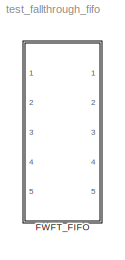
MODEL test_fallthrough_fifo
KIND model
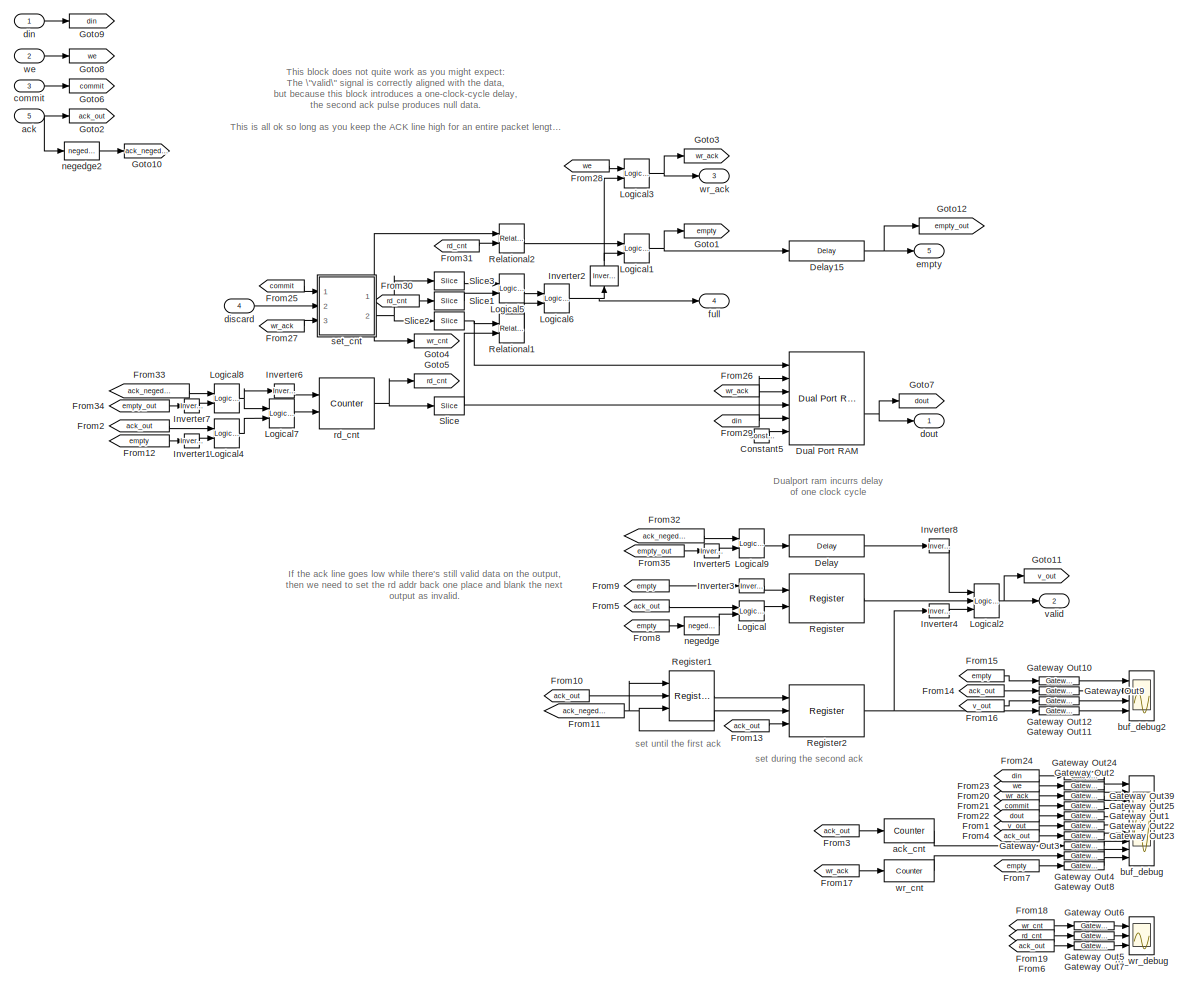
[diagram: FWFT_FIFO - part 1/1, most of the canvas]
BLOCK [SubSystem] FWFT_FIFO
  AttributesFormatString = Depth: 1024
  MaskDescription = A rollback fifo behaves as a normal fifo, except that data which are written in have to be \"committed\" before they become available for readout.  Moreover, any data which are written in and have not been committed can be \"discarded\", and will never be made available for readout.
  MaskEnableString = on
  MaskIconFrame = on
  MaskIconOpaque = on
  MaskIconRotate = none
  MaskIconUnits = autoscale
  MaskInitialization = fmtstr = sprintf('Depth: %d', 2^depth_bits);\nset_param(gcb, 'AttributesFormatString', fmtstr);
  MaskPromptString = Fifo Depth (2^?):
  MaskStyleString = edit
  MaskToolTipString = on
  MaskTunableValueString = on
  MaskValueString = 10
  MaskVariables = depth_bits=@1;
  MaskVisibilityString = on
  MinAlgLoopOccurrences = off
  Ports = [5, 5]
  RTWSystemCode = Auto
  TreatAsAtomicUnit = off
BLOCK [Reference] FWFT_FIFO/Constant5  REF=xbsIndex_r3/Constant
  Ports = [0, 1]
  SourceBlock = xbsIndex_r3/Constant
  SourceType = Xilinx Constant Block
  arith_type = Boolean
  bin_pt = 0
  carry = CIN
  const = 0
  dbl_ovrd = off
  equ = P=C
  explicit_period = on
  inp1 = P
  inp2 = PCIN>>17
  iostate = 0
  n_bits = 1
  opr = +
  opselect = C
  period = 1
BLOCK [Reference] FWFT_FIFO/Delay  REF=xbsIndex_r3/Delay
  Ports = [1, 1]
  SourceBlock = xbsIndex_r3/Delay
  SourceType = Xilinx Delay Block
  accept_only_valid = off
  dbl_ovrd = off
  en = off
  explicit_period = off
  init_zero = on
  latency = 1
  period = 1
  reg_retiming = off
  show_param = off
  xl_area = [0, 0, 0, 0, 0, 0, 0]
  xl_use_area = off
BLOCK [Reference] FWFT_FIFO/Delay15  REF=xbsIndex_r3/Delay
  Ports = [1, 1]
  SourceBlock = xbsIndex_r3/Delay
  SourceType = Xilinx Delay Block
  accept_only_valid = off
  dbl_ovrd = off
  en = off
  explicit_period = off
  init_zero = on
  latency = 1
  period = 1
  reg_retiming = on
  show_param = off
  xl_area = [0, 0, 0, 0, 0, 0, 0]
  xl_use_area = off
BLOCK [Reference] FWFT_FIFO/Dual Port RAM  REF=xbsIndex_r3/Dual Port RAM
  Ports = [6, 2]
  SourceBlock = xbsIndex_r3/Dual Port RAM
  SourceType = Xilinx Dual Port Random Access Memory
  dbl_ovrd = off
  depth = 2^depth_bits
  distributed_mem = off
  explicit_period = off
  gen_core = off
  initVector = 0
  init_a = 0
  init_b = 0
  init_zero = on
  latency = 1
  mem_collision = off
  period = 1
  rst_a = off
  rst_b = off
  show_param = off
  use_rpm = off
  write_mode_A = Read Before Write
  write_mode_B = Read Before Write
  xl_area = [0, 0, 0, 0, 0, 0, 0]
  xl_use_area = off
BLOCK [From] FWFT_FIFO/From1
  CloseFcn = tagdialog Close
  GotoTag = v_out
BLOCK [From] FWFT_FIFO/From10
  CloseFcn = tagdialog Close
  GotoTag = ack_out
BLOCK [From] FWFT_FIFO/From11
  CloseFcn = tagdialog Close
  GotoTag = ack_negedge
BLOCK [From] FWFT_FIFO/From12
  CloseFcn = tagdialog Close
  GotoTag = empty
BLOCK [From] FWFT_FIFO/From13
  CloseFcn = tagdialog Close
  GotoTag = ack_out
BLOCK [From] FWFT_FIFO/From14
  CloseFcn = tagdialog Close
  GotoTag = ack_out
BLOCK [From] FWFT_FIFO/From15
  CloseFcn = tagdialog Close
  GotoTag = empty
BLOCK [From] FWFT_FIFO/From16
  CloseFcn = tagdialog Close
  GotoTag = v_out
BLOCK [From] FWFT_FIFO/From17
  CloseFcn = tagdialog Close
  GotoTag = wr_ack
BLOCK [From] FWFT_FIFO/From18
  CloseFcn = tagdialog Close
  GotoTag = wr_cnt
BLOCK [From] FWFT_FIFO/From19
  CloseFcn = tagdialog Close
  GotoTag = rd_cnt
BLOCK [From] FWFT_FIFO/From2
  CloseFcn = tagdialog Close
  GotoTag = ack_out
BLOCK [From] FWFT_FIFO/From20
  CloseFcn = tagdialog Close
  GotoTag = wr_ack
BLOCK [From] FWFT_FIFO/From21
  CloseFcn = tagdialog Close
  GotoTag = commit
BLOCK [From] FWFT_FIFO/From22
  CloseFcn = tagdialog Close
  GotoTag = dout
BLOCK [From] FWFT_FIFO/From23
  CloseFcn = tagdialog Close
  GotoTag = we
BLOCK [From] FWFT_FIFO/From24
  CloseFcn = tagdialog Close
  GotoTag = din
BLOCK [From] FWFT_FIFO/From25
  CloseFcn = tagdialog Close
  GotoTag = commit
BLOCK [From] FWFT_FIFO/From26
  CloseFcn = tagdialog Close
  GotoTag = wr_ack
BLOCK [From] FWFT_FIFO/From27
  CloseFcn = tagdialog Close
  GotoTag = wr_ack
BLOCK [From] FWFT_FIFO/From28
  CloseFcn = tagdialog Close
  GotoTag = we
BLOCK [From] FWFT_FIFO/From29
  CloseFcn = tagdialog Close
  GotoTag = din
BLOCK [From] FWFT_FIFO/From3
  CloseFcn = tagdialog Close
  GotoTag = ack_out
BLOCK [From] FWFT_FIFO/From30
  CloseFcn = tagdialog Close
  GotoTag = rd_cnt
BLOCK [From] FWFT_FIFO/From31
  CloseFcn = tagdialog Close
  GotoTag = rd_cnt
BLOCK [From] FWFT_FIFO/From32
  CloseFcn = tagdialog Close
  GotoTag = ack_negedge
BLOCK [From] FWFT_FIFO/From33
  CloseFcn = tagdialog Close
  GotoTag = ack_negedge
BLOCK [From] FWFT_FIFO/From34
  CloseFcn = tagdialog Close
  GotoTag = empty_out
BLOCK [From] FWFT_FIFO/From35
  CloseFcn = tagdialog Close
  GotoTag = empty_out
BLOCK [From] FWFT_FIFO/From4
  CloseFcn = tagdialog Close
  GotoTag = ack_out
BLOCK [From] FWFT_FIFO/From5
  CloseFcn = tagdialog Close
  GotoTag = ack_out
BLOCK [From] FWFT_FIFO/From6
  CloseFcn = tagdialog Close
  GotoTag = ack_out
BLOCK [From] FWFT_FIFO/From7
  CloseFcn = tagdialog Close
  GotoTag = empty
BLOCK [From] FWFT_FIFO/From8
  CloseFcn = tagdialog Close
  GotoTag = empty
BLOCK [From] FWFT_FIFO/From9
  CloseFcn = tagdialog Close
  GotoTag = empty
BLOCK [Reference] FWFT_FIFO/Gateway Out1  REF=xbsIndex_r3/Gateway Out
  LOCs = {}
  Ports = [1, 1]
  SourceBlock = xbsIndex_r3/Gateway Out
  SourceType = Xilinx Gateway Out
  arith_type = Boolean
  bin_pt = 6
  hdl_port = on
  locs_specified = off
  nbits = 8
  needs_fixed_name = off
  output_type = Double
  overflow = Wrap
  quantization = Truncate
  show_param = off
  timing_constraint = None
  xl_area = [0, 0, 0, 0, 0, 0, 0]
  xl_use_area = off
BLOCK [Reference] FWFT_FIFO/Gateway Out10  REF=xbsIndex_r3/Gateway Out
  LOCs = {}
  Ports = [1, 1]
  SourceBlock = xbsIndex_r3/Gateway Out
  SourceType = Xilinx Gateway Out
  arith_type = Boolean
  bin_pt = 6
  hdl_port = on
  locs_specified = off
  nbits = 8
  needs_fixed_name = off
  output_type = Double
  overflow = Wrap
  quantization = Truncate
  show_param = off
  timing_constraint = None
  xl_area = [0, 0, 0, 0, 0, 0, 0]
  xl_use_area = off
BLOCK [Reference] FWFT_FIFO/Gateway Out11  REF=xbsIndex_r3/Gateway Out
  LOCs = {}
  Ports = [1, 1]
  SourceBlock = xbsIndex_r3/Gateway Out
  SourceType = Xilinx Gateway Out
  arith_type = Boolean
  bin_pt = 6
  hdl_port = on
  locs_specified = off
  nbits = 8
  needs_fixed_name = off
  output_type = Double
  overflow = Wrap
  quantization = Truncate
  show_param = off
  timing_constraint = None
  xl_area = [0, 0, 0, 0, 0, 0, 0]
  xl_use_area = off
BLOCK [Reference] FWFT_FIFO/Gateway Out12  REF=xbsIndex_r3/Gateway Out
  LOCs = {}
  Ports = [1, 1]
  SourceBlock = xbsIndex_r3/Gateway Out
  SourceType = Xilinx Gateway Out
  arith_type = Boolean
  bin_pt = 6
  hdl_port = on
  locs_specified = off
  nbits = 8
  needs_fixed_name = off
  output_type = Double
  overflow = Wrap
  quantization = Truncate
  show_param = off
  timing_constraint = None
  xl_area = [0, 0, 0, 0, 0, 0, 0]
  xl_use_area = off
BLOCK [Reference] FWFT_FIFO/Gateway Out2  REF=xbsIndex_r3/Gateway Out
  LOCs = {}
  Ports = [1, 1]
  SourceBlock = xbsIndex_r3/Gateway Out
  SourceType = Xilinx Gateway Out
  arith_type = Boolean
  bin_pt = 6
  hdl_port = on
  locs_specified = off
  nbits = 8
  needs_fixed_name = off
  output_type = Double
  overflow = Wrap
  quantization = Truncate
  show_param = off
  timing_constraint = None
  xl_area = [0, 0, 0, 0, 0, 0, 0]
  xl_use_area = off
BLOCK [Reference] FWFT_FIFO/Gateway Out22  REF=xbsIndex_r3/Gateway Out
  LOCs = {}
  Ports = [1, 1]
  SourceBlock = xbsIndex_r3/Gateway Out
  SourceType = Xilinx Gateway Out
  arith_type = Boolean
  bin_pt = 6
  hdl_port = on
  locs_specified = off
  nbits = 8
  needs_fixed_name = off
  output_type = Double
  overflow = Wrap
  quantization = Truncate
  show_param = off
  timing_constraint = None
  xl_area = [0, 0, 0, 0, 0, 0, 0]
  xl_use_area = off
BLOCK [Reference] FWFT_FIFO/Gateway Out23  REF=xbsIndex_r3/Gateway Out
  LOCs = {}
  Ports = [1, 1]
  SourceBlock = xbsIndex_r3/Gateway Out
  SourceType = Xilinx Gateway Out
  arith_type = Boolean
  bin_pt = 6
  hdl_port = on
  locs_specified = off
  nbits = 8
  needs_fixed_name = off
  output_type = Double
  overflow = Wrap
  quantization = Truncate
  show_param = off
  timing_constraint = None
  xl_area = [0, 0, 0, 0, 0, 0, 0]
  xl_use_area = off
BLOCK [Reference] FWFT_FIFO/Gateway Out24  REF=xbsIndex_r3/Gateway Out
  LOCs = {}
  Ports = [1, 1]
  SourceBlock = xbsIndex_r3/Gateway Out
  SourceType = Xilinx Gateway Out
  arith_type = Boolean
  bin_pt = 6
  hdl_port = on
  locs_specified = off
  nbits = 8
  needs_fixed_name = off
  output_type = Double
  overflow = Wrap
  quantization = Truncate
  show_param = off
  timing_constraint = None
  xl_area = [0, 0, 0, 0, 0, 0, 0]
  xl_use_area = off
BLOCK [Reference] FWFT_FIFO/Gateway Out25  REF=xbsIndex_r3/Gateway Out
  LOCs = {}
  Ports = [1, 1]
  SourceBlock = xbsIndex_r3/Gateway Out
  SourceType = Xilinx Gateway Out
  arith_type = Boolean
  bin_pt = 6
  hdl_port = on
  locs_specified = off
  nbits = 8
  needs_fixed_name = off
  output_type = Double
  overflow = Wrap
  quantization = Truncate
  show_param = off
  timing_constraint = None
  xl_area = [0, 0, 0, 0, 0, 0, 0]
  xl_use_area = off
BLOCK [Reference] FWFT_FIFO/Gateway Out3  REF=xbsIndex_r3/Gateway Out
  LOCs = {}
  Ports = [1, 1]
  SourceBlock = xbsIndex_r3/Gateway Out
  SourceType = Xilinx Gateway Out
  arith_type = Boolean
  bin_pt = 6
  hdl_port = on
  locs_specified = off
  nbits = 8
  needs_fixed_name = off
  output_type = Double
  overflow = Wrap
  quantization = Truncate
  show_param = off
  timing_constraint = None
  xl_area = [0, 0, 0, 0, 0, 0, 0]
  xl_use_area = off
BLOCK [Reference] FWFT_FIFO/Gateway Out39  REF=xbsIndex_r3/Gateway Out
  LOCs = {}
  Ports = [1, 1]
  SourceBlock = xbsIndex_r3/Gateway Out
  SourceType = Xilinx Gateway Out
  arith_type = Boolean
  bin_pt = 6
  hdl_port = on
  locs_specified = off
  nbits = 8
  needs_fixed_name = off
  output_type = Double
  overflow = Wrap
  quantization = Truncate
  show_param = off
  timing_constraint = None
  xl_area = [0, 0, 0, 0, 0, 0, 0]
  xl_use_area = off
BLOCK [Reference] FWFT_FIFO/Gateway Out4  REF=xbsIndex_r3/Gateway Out
  LOCs = {}
  Ports = [1, 1]
  SourceBlock = xbsIndex_r3/Gateway Out
  SourceType = Xilinx Gateway Out
  arith_type = Boolean
  bin_pt = 6
  hdl_port = on
  locs_specified = off
  nbits = 8
  needs_fixed_name = off
  output_type = Double
  overflow = Wrap
  quantization = Truncate
  show_param = off
  timing_constraint = None
  xl_area = [0, 0, 0, 0, 0, 0, 0]
  xl_use_area = off
BLOCK [Reference] FWFT_FIFO/Gateway Out5  REF=xbsIndex_r3/Gateway Out
  LOCs = {}
  Ports = [1, 1]
  SourceBlock = xbsIndex_r3/Gateway Out
  SourceType = Xilinx Gateway Out
  arith_type = Boolean
  bin_pt = 6
  hdl_port = on
  locs_specified = off
  nbits = 8
  needs_fixed_name = off
  output_type = Double
  overflow = Wrap
  quantization = Truncate
  show_param = off
  timing_constraint = None
  xl_area = [0, 0, 0, 0, 0, 0, 0]
  xl_use_area = off
BLOCK [Reference] FWFT_FIFO/Gateway Out6  REF=xbsIndex_r3/Gateway Out
  LOCs = {}
  Ports = [1, 1]
  SourceBlock = xbsIndex_r3/Gateway Out
  SourceType = Xilinx Gateway Out
  arith_type = Boolean
  bin_pt = 6
  hdl_port = on
  locs_specified = off
  nbits = 8
  needs_fixed_name = off
  output_type = Double
  overflow = Wrap
  quantization = Truncate
  show_param = off
  timing_constraint = None
  xl_area = [0, 0, 0, 0, 0, 0, 0]
  xl_use_area = off
BLOCK [Reference] FWFT_FIFO/Gateway Out7  REF=xbsIndex_r3/Gateway Out
  LOCs = {}
  Ports = [1, 1]
  SourceBlock = xbsIndex_r3/Gateway Out
  SourceType = Xilinx Gateway Out
  arith_type = Boolean
  bin_pt = 6
  hdl_port = on
  locs_specified = off
  nbits = 8
  needs_fixed_name = off
  output_type = Double
  overflow = Wrap
  quantization = Truncate
  show_param = off
  timing_constraint = None
  xl_area = [0, 0, 0, 0, 0, 0, 0]
  xl_use_area = off
BLOCK [Reference] FWFT_FIFO/Gateway Out8  REF=xbsIndex_r3/Gateway Out
  LOCs = {}
  Ports = [1, 1]
  SourceBlock = xbsIndex_r3/Gateway Out
  SourceType = Xilinx Gateway Out
  arith_type = Boolean
  bin_pt = 6
  hdl_port = on
  locs_specified = off
  nbits = 8
  needs_fixed_name = off
  output_type = Double
  overflow = Wrap
  quantization = Truncate
  show_param = off
  timing_constraint = None
  xl_area = [0, 0, 0, 0, 0, 0, 0]
  xl_use_area = off
BLOCK [Reference] FWFT_FIFO/Gateway Out9  REF=xbsIndex_r3/Gateway Out
  LOCs = {}
  Ports = [1, 1]
  SourceBlock = xbsIndex_r3/Gateway Out
  SourceType = Xilinx Gateway Out
  arith_type = Boolean
  bin_pt = 6
  hdl_port = on
  locs_specified = off
  nbits = 8
  needs_fixed_name = off
  output_type = Double
  overflow = Wrap
  quantization = Truncate
  show_param = off
  timing_constraint = None
  xl_area = [0, 0, 0, 0, 0, 0, 0]
  xl_use_area = off
BLOCK [Goto] FWFT_FIFO/Goto1
  GotoTag = empty
  TagVisibility = local
BLOCK [Goto] FWFT_FIFO/Goto10
  GotoTag = ack_negedge
  TagVisibility = local
BLOCK [Goto] FWFT_FIFO/Goto11
  GotoTag = v_out
  TagVisibility = local
BLOCK [Goto] FWFT_FIFO/Goto12
  GotoTag = empty_out
  TagVisibility = local
BLOCK [Goto] FWFT_FIFO/Goto2
  GotoTag = ack_out
  TagVisibility = local
BLOCK [Goto] FWFT_FIFO/Goto3
  GotoTag = wr_ack
  TagVisibility = local
BLOCK [Goto] FWFT_FIFO/Goto4
  GotoTag = wr_cnt
  TagVisibility = local
BLOCK [Goto] FWFT_FIFO/Goto5
  GotoTag = rd_cnt
  TagVisibility = local
BLOCK [Goto] FWFT_FIFO/Goto6
  GotoTag = commit
  TagVisibility = local
BLOCK [Goto] FWFT_FIFO/Goto7
  GotoTag = dout
  TagVisibility = local
BLOCK [Goto] FWFT_FIFO/Goto8
  GotoTag = we
  TagVisibility = local
BLOCK [Goto] FWFT_FIFO/Goto9
  GotoTag = din
  TagVisibility = local
BLOCK [Reference] FWFT_FIFO/Inverter1  REF=xbsIndex_r3/Inverter
  Ports = [1, 1]
  SourceBlock = xbsIndex_r3/Inverter
  SourceType = Xilinx Inverter
  dbl_ovrd = off
  en = off
  explicit_period = off
  latency = 0
  period = 1
  show_param = off
  xl_area = [0, 0, 0, 0, 0, 0, 0]
  xl_use_area = off
BLOCK [Reference] FWFT_FIFO/Inverter2  REF=xbsIndex_r3/Inverter
  Ports = [1, 1]
  SourceBlock = xbsIndex_r3/Inverter
  SourceType = Xilinx Inverter
  dbl_ovrd = off
  en = off
  explicit_period = off
  latency = 0
  period = 1
  show_param = off
  xl_area = [0, 0, 0, 0, 0, 0, 0]
  xl_use_area = off
BLOCK [Reference] FWFT_FIFO/Inverter3  REF=xbsIndex_r3/Inverter
  Ports = [1, 1]
  SourceBlock = xbsIndex_r3/Inverter
  SourceType = Xilinx Inverter
  dbl_ovrd = off
  en = off
  explicit_period = off
  latency = 0
  period = 1
  show_param = off
  xl_area = [0, 0, 0, 0, 0, 0, 0]
  xl_use_area = off
BLOCK [Reference] FWFT_FIFO/Inverter4  REF=xbsIndex_r3/Inverter
  Ports = [1, 1]
  SourceBlock = xbsIndex_r3/Inverter
  SourceType = Xilinx Inverter
  dbl_ovrd = off
  en = off
  explicit_period = off
  latency = 0
  period = 1
  show_param = off
  xl_area = [0, 0, 0, 0, 0, 0, 0]
  xl_use_area = off
BLOCK [Reference] FWFT_FIFO/Inverter5  REF=xbsIndex_r3/Inverter
  Ports = [1, 1]
  SourceBlock = xbsIndex_r3/Inverter
  SourceType = Xilinx Inverter
  dbl_ovrd = off
  en = off
  explicit_period = off
  latency = 0
  period = 1
  show_param = off
  xl_area = [0, 0, 0, 0, 0, 0, 0]
  xl_use_area = off
BLOCK [Reference] FWFT_FIFO/Inverter6  REF=xbsIndex_r3/Inverter
  Ports = [1, 1]
  SourceBlock = xbsIndex_r3/Inverter
  SourceType = Xilinx Inverter
  dbl_ovrd = off
  en = off
  explicit_period = off
  latency = 0
  period = 1
  show_param = off
  xl_area = [0, 0, 0, 0, 0, 0, 0]
  xl_use_area = off
BLOCK [Reference] FWFT_FIFO/Inverter7  REF=xbsIndex_r3/Inverter
  Ports = [1, 1]
  SourceBlock = xbsIndex_r3/Inverter
  SourceType = Xilinx Inverter
  dbl_ovrd = off
  en = off
  explicit_period = off
  latency = 0
  period = 1
  show_param = off
  xl_area = [0, 0, 0, 0, 0, 0, 0]
  xl_use_area = off
BLOCK [Reference] FWFT_FIFO/Inverter8  REF=xbsIndex_r3/Inverter
  Ports = [1, 1]
  SourceBlock = xbsIndex_r3/Inverter
  SourceType = Xilinx Inverter
  dbl_ovrd = off
  en = off
  explicit_period = off
  latency = 0
  period = 1
  show_param = off
  xl_area = [0, 0, 0, 0, 0, 0, 0]
  xl_use_area = off
BLOCK [Reference] FWFT_FIFO/Logical  REF=xbsIndex_r3/Logical
  Ports = [2, 1]
  SourceBlock = xbsIndex_r3/Logical
  SourceType = Xilinx Logical Block
  align_bp = on
  arith_type = Unsigned
  bin_pt = 2
  dbl_ovrd = off
  en = off
  explicit_period = off
  inputs = 2
  latency = 0
  logical_function = OR
  n_bits = 8
  period = 1
  precision = Full
  show_param = off
  xl_area = [0, 0, 0, 0, 0, 0, 0]
  xl_use_area = off
BLOCK [Reference] FWFT_FIFO/Logical1  REF=xbsIndex_r3/Logical
  Ports = [2, 1]
  SourceBlock = xbsIndex_r3/Logical
  SourceType = Xilinx Logical Block
  align_bp = on
  arith_type = Unsigned
  bin_pt = 2
  dbl_ovrd = off
  en = off
  explicit_period = on
  inputs = 2
  latency = 0
  logical_function = AND
  n_bits = 8
  period = 1
  precision = Full
  show_param = off
  xl_area = [0, 0, 0, 0, 0, 0, 0]
  xl_use_area = off
BLOCK [Reference] FWFT_FIFO/Logical2  REF=xbsIndex_r3/Logical
  Ports = [3, 1]
  SourceBlock = xbsIndex_r3/Logical
  SourceType = Xilinx Logical Block
  align_bp = on
  arith_type = Unsigned
  bin_pt = 2
  dbl_ovrd = off
  en = off
  explicit_period = on
  inputs = 3
  latency = 0
  logical_function = AND
  n_bits = 8
  period = 1
  precision = Full
  show_param = off
  xl_area = [0, 0, 0, 0, 0, 0, 0]
  xl_use_area = off
BLOCK [Reference] FWFT_FIFO/Logical3  REF=xbsIndex_r3/Logical
  Ports = [2, 1]
  SourceBlock = xbsIndex_r3/Logical
  SourceType = Xilinx Logical Block
  align_bp = on
  arith_type = Unsigned
  bin_pt = 2
  dbl_ovrd = off
  en = off
  explicit_period = off
  inputs = 2
  latency = 0
  logical_function = AND
  n_bits = 8
  period = 1
  precision = Full
  show_param = off
  xl_area = [0, 0, 0, 0, 0, 0, 0]
  xl_use_area = off
BLOCK [Reference] FWFT_FIFO/Logical4  REF=xbsIndex_r3/Logical
  Ports = [2, 1]
  SourceBlock = xbsIndex_r3/Logical
  SourceType = Xilinx Logical Block
  align_bp = on
  arith_type = Unsigned
  bin_pt = 2
  dbl_ovrd = off
  en = off
  explicit_period = off
  inputs = 2
  latency = 0
  logical_function = AND
  n_bits = 8
  period = 1
  precision = Full
  show_param = off
  xl_area = [0, 0, 0, 0, 0, 0, 0]
  xl_use_area = off
BLOCK [Reference] FWFT_FIFO/Logical5  REF=xbsIndex_r3/Logical
  Ports = [2, 1]
  SourceBlock = xbsIndex_r3/Logical
  SourceType = Xilinx Logical Block
  align_bp = on
  arith_type = Unsigned
  bin_pt = 2
  dbl_ovrd = off
  en = off
  explicit_period = off
  inputs = 2
  latency = 0
  logical_function = XOR
  n_bits = 8
  period = 1
  precision = Full
  show_param = off
  xl_area = [0, 0, 0, 0, 0, 0, 0]
  xl_use_area = off
BLOCK [Reference] FWFT_FIFO/Logical6  REF=xbsIndex_r3/Logical
  Ports = [2, 1]
  SourceBlock = xbsIndex_r3/Logical
  SourceType = Xilinx Logical Block
  align_bp = on
  arith_type = Unsigned
  bin_pt = 2
  dbl_ovrd = off
  en = off
  explicit_period = off
  inputs = 2
  latency = 0
  logical_function = AND
  n_bits = 8
  period = 1
  precision = Full
  show_param = off
  xl_area = [0, 0, 0, 0, 0, 0, 0]
  xl_use_area = off
BLOCK [Reference] FWFT_FIFO/Logical7  REF=xbsIndex_r3/Logical
  Ports = [2, 1]
  SourceBlock = xbsIndex_r3/Logical
  SourceType = Xilinx Logical Block
  align_bp = on
  arith_type = Unsigned
  bin_pt = 2
  dbl_ovrd = off
  en = off
  explicit_period = off
  inputs = 2
  latency = 0
  logical_function = OR
  n_bits = 8
  period = 1
  precision = Full
  show_param = off
  xl_area = [0, 0, 0, 0, 0, 0, 0]
  xl_use_area = off
BLOCK [Reference] FWFT_FIFO/Logical8  REF=xbsIndex_r3/Logical
  Ports = [2, 1]
  SourceBlock = xbsIndex_r3/Logical
  SourceType = Xilinx Logical Block
  align_bp = on
  arith_type = Unsigned
  bin_pt = 2
  dbl_ovrd = off
  en = off
  explicit_period = off
  inputs = 2
  latency = 0
  logical_function = AND
  n_bits = 8
  period = 1
  precision = Full
  show_param = off
  xl_area = [0, 0, 0, 0, 0, 0, 0]
  xl_use_area = off
BLOCK [Reference] FWFT_FIFO/Logical9  REF=xbsIndex_r3/Logical
  Ports = [2, 1]
  SourceBlock = xbsIndex_r3/Logical
  SourceType = Xilinx Logical Block
  align_bp = on
  arith_type = Unsigned
  bin_pt = 2
  dbl_ovrd = off
  en = off
  explicit_period = off
  inputs = 2
  latency = 0
  logical_function = AND
  n_bits = 8
  period = 1
  precision = Full
  show_param = off
  xl_area = [0, 0, 0, 0, 0, 0, 0]
  xl_use_area = off
BLOCK [Reference] FWFT_FIFO/Register  REF=xbsIndex_r3/Register
  Ports = [2, 1]
  SourceBlock = xbsIndex_r3/Register
  SourceType = Xilinx Register Block
  dbl_ovrd = off
  en = on
  explicit_period = on
  init = 0
  out_en = off
  period = 1
  reg_only_valid = off
  rst = off
  show_param = off
  xl_area = [0, 0, 0, 0, 0, 0, 0]
  xl_use_area = off
BLOCK [Reference] FWFT_FIFO/Register1  REF=xbsIndex_r3/Register
  Ports = [3, 1]
  SourceBlock = xbsIndex_r3/Register
  SourceType = Xilinx Register Block
  dbl_ovrd = off
  en = on
  explicit_period = on
  init = 0
  out_en = off
  period = 1
  reg_only_valid = off
  rst = on
  show_param = off
  xl_area = [0, 0, 0, 0, 0, 0, 0]
  xl_use_area = off
BLOCK [Reference] FWFT_FIFO/Register2  REF=xbsIndex_r3/Register
  Ports = [3, 1]
  SourceBlock = xbsIndex_r3/Register
  SourceType = Xilinx Register Block
  dbl_ovrd = off
  en = on
  explicit_period = on
  init = 0
  out_en = off
  period = 1
  reg_only_valid = off
  rst = on
  show_param = off
  xl_area = [0, 0, 0, 0, 0, 0, 0]
  xl_use_area = off
BLOCK [Reference] FWFT_FIFO/Relational1  REF=xbsIndex_r3/Relational
  Ports = [2, 1]
  SourceBlock = xbsIndex_r3/Relational
  SourceType = Xilinx Relational Block
  dbl_ovrd = off
  en = off
  explicit_period = on
  latency = 0
  mode = a=b
  period = 1
  show_param = off
  xl_area = [0, 0, 0, 0, 0, 0, 0]
  xl_use_area = off
BLOCK [Reference] FWFT_FIFO/Relational2  REF=xbsIndex_r3/Relational
  Ports = [2, 1]
  SourceBlock = xbsIndex_r3/Relational
  SourceType = Xilinx Relational Block
  dbl_ovrd = off
  en = off
  explicit_period = on
  latency = 0
  mode = a=b
  period = 1
  show_param = off
  xl_area = [0, 0, 0, 0, 0, 0, 0]
  xl_use_area = off
BLOCK [Reference] FWFT_FIFO/Slice  REF=xbsIndex_r3/Slice
  Ports = [1, 1]
  SourceBlock = xbsIndex_r3/Slice
  SourceType = Xilinx Slice Block
  base0 = LSB of Input
  base1 = MSB of Input
  bit0 = 0
  bit1 = -1
  boolean_output = off
  dbl_ovrd = off
  explicit_period = off
  mode = Two Bit Locations
  nbits = 1
  period = 1
BLOCK [Reference] FWFT_FIFO/Slice1  REF=xbsIndex_r3/Slice
  Ports = [1, 1]
  SourceBlock = xbsIndex_r3/Slice
  SourceType = Xilinx Slice Block
  base0 = LSB of Input
  base1 = MSB of Input
  bit0 = 0
  bit1 = 0
  boolean_output = on
  dbl_ovrd = off
  explicit_period = off
  mode = Upper Bit Location + Width
  nbits = 1
  period = 1
BLOCK [Reference] FWFT_FIFO/Slice2  REF=xbsIndex_r3/Slice
  Ports = [1, 1]
  SourceBlock = xbsIndex_r3/Slice
  SourceType = Xilinx Slice Block
  base0 = LSB of Input
  base1 = MSB of Input
  bit0 = 0
  bit1 = -1
  boolean_output = off
  dbl_ovrd = off
  explicit_period = off
  mode = Two Bit Locations
  nbits = 1
  period = 1
BLOCK [Reference] FWFT_FIFO/Slice3  REF=xbsIndex_r3/Slice
  Ports = [1, 1]
  SourceBlock = xbsIndex_r3/Slice
  SourceType = Xilinx Slice Block
  base0 = LSB of Input
  base1 = MSB of Input
  bit0 = 0
  bit1 = 0
  boolean_output = on
  dbl_ovrd = off
  explicit_period = off
  mode = Upper Bit Location + Width
  nbits = 1
  period = 1
BLOCK [Inport] FWFT_FIFO/ack
  IconDisplay = Port number
  LatchInput = off
  Port = 5
BLOCK [Reference] FWFT_FIFO/ack_cnt  REF=xbsIndex_r3/Counter
  Ports = [1, 1]
  SourceBlock = xbsIndex_r3/Counter
  SourceType = Xilinx Counter Block
  arith_type = Unsigned
  bin_pt = 0
  cnt_by_val = 1
  cnt_to = Inf
  cnt_type = Free Running
  dbl_ovrd = off
  en = on
  explicit_period = on
  gen_core = off
  load_pin = off
  n_bits = depth_bits + 1
  operation = Up
  period = 1
  rst = off
  show_param = off
  start_count = 0
  use_rpm = on
  xl_area = [0, 0, 0, 0, 0, 0, 0]
  xl_use_area = off
BLOCK [Scope] FWFT_FIFO/buf_debug
  DataFormat = StructureWithTime
  LimitDataPoints = off
  NumInputPorts = 10
  Ports = [10]
  SaveName = ScopeData13
  YMax = 13300~1~10500~1~17250~5~5~5~5~5
  YMin = 12000~0~9500~0~15500~-5~-5~-5~-5~-5
  ZoomMode = xonly
BLOCK [Scope] FWFT_FIFO/buf_debug2
  DataFormat = StructureWithTime
  LimitDataPoints = off
  NumInputPorts = 4
  Ports = [4]
  SaveName = ScopeData15
  YMax = 1~1~1~1
  YMin = 0~1~0~-1
  ZoomMode = xonly
BLOCK [Inport] FWFT_FIFO/commit
  IconDisplay = Port number
  LatchInput = off
  Port = 3
BLOCK [Inport] FWFT_FIFO/din
  IconDisplay = Port number
  LatchInput = off
  Port = 1
BLOCK [Inport] FWFT_FIFO/discard
  IconDisplay = Port number
  LatchInput = off
  Port = 4
BLOCK [Outport] FWFT_FIFO/dout
  BusOutputAsStruct = off
  IconDisplay = Port number
BLOCK [Outport] FWFT_FIFO/empty
  BusOutputAsStruct = off
  IconDisplay = Port number
  Port = 5
BLOCK [Outport] FWFT_FIFO/full
  BusOutputAsStruct = off
  IconDisplay = Port number
  Port = 4
BLOCK [Reference] FWFT_FIFO/negedge  REF=casper_library/Misc/negedge  (lib defined in mdl_138b2fc3435f, mdl_4ed325b712b3, +2 more)
  Ports = [1, 1]
  ShowPortLabels = on
  SourceBlock = casper_library/Misc/negedge
  SourceType = negedge
  Tag = Rising Edge Detector
BLOCK [Reference] FWFT_FIFO/negedge2  REF=casper_library/Misc/negedge  (lib defined in mdl_138b2fc3435f, mdl_4ed325b712b3, +2 more)
  Ports = [1, 1]
  ShowPortLabels = on
  SourceBlock = casper_library/Misc/negedge
  SourceType = negedge
  Tag = Rising Edge Detector
BLOCK [Reference] FWFT_FIFO/rd_cnt  REF=xbsIndex_r3/Counter
  Ports = [2, 1]
  SourceBlock = xbsIndex_r3/Counter
  SourceType = Xilinx Counter Block
  arith_type = Unsigned
  bin_pt = 0
  cnt_by_val = 1
  cnt_to = Inf
  cnt_type = Free Running
  dbl_ovrd = off
  en = on
  explicit_period = on
  gen_core = off
  load_pin = off
  n_bits = depth_bits + 1
  operation = Up/Down
  period = 1
  rst = off
  show_param = off
  start_count = 0
  use_rpm = on
  xl_area = [0, 0, 0, 0, 0, 0, 0]
  xl_use_area = off
BLOCK [Scope] FWFT_FIFO/rd_wr_debug
  DataFormat = StructureWithTime
  LimitDataPoints = off
  NumInputPorts = 3
  Ports = [3]
  SaveName = ScopeData14
  YMax = 13300~1~5
  YMin = 12000~0~-5
  ZoomMode = yonly
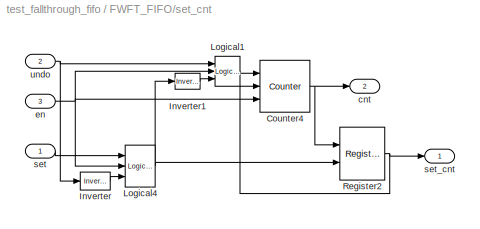
BLOCK [SubSystem] FWFT_FIFO/set_cnt
  MinAlgLoopOccurrences = off
  Ports = [3, 2]
  RTWSystemCode = Auto
  TreatAsAtomicUnit = off
BLOCK [Reference] FWFT_FIFO/set_cnt/Counter4  REF=xbsIndex_r3/Counter
  Ports = [3, 1]
  SourceBlock = xbsIndex_r3/Counter
  SourceType = Xilinx Counter Block
  arith_type = Unsigned
  bin_pt = 0
  cnt_by_val = 1
  cnt_to = Inf
  cnt_type = Free Running
  dbl_ovrd = off
  en = on
  explicit_period = on
  gen_core = off
  load_pin = on
  n_bits = depth_bits + 1
  operation = Up
  period = 1
  rst = off
  show_param = off
  start_count = 0
  use_rpm = on
  xl_area = [0, 0, 0, 0, 0, 0, 0]
  xl_use_area = off
BLOCK [Reference] FWFT_FIFO/set_cnt/Inverter  REF=xbsIndex_r3/Inverter
  Ports = [1, 1]
  SourceBlock = xbsIndex_r3/Inverter
  SourceType = Xilinx Inverter
  dbl_ovrd = off
  en = off
  explicit_period = off
  latency = 0
  period = 1
  show_param = off
  xl_area = [0, 0, 0, 0, 0, 0, 0]
  xl_use_area = off
BLOCK [Reference] FWFT_FIFO/set_cnt/Inverter1  REF=xbsIndex_r3/Inverter
  Ports = [1, 1]
  SourceBlock = xbsIndex_r3/Inverter
  SourceType = Xilinx Inverter
  dbl_ovrd = off
  en = off
  explicit_period = off
  latency = 0
  period = 1
  show_param = off
  xl_area = [0, 0, 0, 0, 0, 0, 0]
  xl_use_area = off
BLOCK [Reference] FWFT_FIFO/set_cnt/Logical1  REF=xbsIndex_r3/Logical
  Ports = [3, 1]
  SourceBlock = xbsIndex_r3/Logical
  SourceType = Xilinx Logical Block
  align_bp = on
  arith_type = Unsigned
  bin_pt = 2
  dbl_ovrd = off
  en = off
  explicit_period = off
  inputs = 3
  latency = 0
  logical_function = AND
  n_bits = 8
  period = 1
  precision = Full
  show_param = off
  xl_area = [0, 0, 0, 0, 0, 0, 0]
  xl_use_area = off
BLOCK [Reference] FWFT_FIFO/set_cnt/Logical4  REF=xbsIndex_r3/Logical
  Ports = [3, 1]
  SourceBlock = xbsIndex_r3/Logical
  SourceType = Xilinx Logical Block
  align_bp = on
  arith_type = Unsigned
  bin_pt = 2
  dbl_ovrd = off
  en = off
  explicit_period = off
  inputs = 3
  latency = 1
  logical_function = AND
  n_bits = 8
  period = 1
  precision = Full
  show_param = off
  xl_area = [0, 0, 0, 0, 0, 0, 0]
  xl_use_area = off
BLOCK [Reference] FWFT_FIFO/set_cnt/Register2  REF=xbsIndex_r3/Register
  Ports = [2, 1]
  SourceBlock = xbsIndex_r3/Register
  SourceType = Xilinx Register Block
  dbl_ovrd = off
  en = on
  explicit_period = off
  init = 0
  out_en = off
  period = 1
  reg_only_valid = off
  rst = off
  show_param = off
  xl_area = [0, 0, 0, 0, 0, 0, 0]
  xl_use_area = off
BLOCK [Outport] FWFT_FIFO/set_cnt/cnt
  BusOutputAsStruct = off
  IconDisplay = Port number
  Port = 2
BLOCK [Inport] FWFT_FIFO/set_cnt/en
  IconDisplay = Port number
  LatchInput = off
  Port = 3
BLOCK [Inport] FWFT_FIFO/set_cnt/set
  IconDisplay = Port number
  LatchInput = off
  Port = 1
BLOCK [Outport] FWFT_FIFO/set_cnt/set_cnt
  BusOutputAsStruct = off
  IconDisplay = Port number
BLOCK [Inport] FWFT_FIFO/set_cnt/undo
  IconDisplay = Port number
  LatchInput = off
  Port = 2
BLOCK [Outport] FWFT_FIFO/valid
  BusOutputAsStruct = off
  IconDisplay = Port number
  Port = 2
BLOCK [Inport] FWFT_FIFO/we
  IconDisplay = Port number
  LatchInput = off
  Port = 2
BLOCK [Outport] FWFT_FIFO/wr_ack
  BusOutputAsStruct = off
  IconDisplay = Port number
  Port = 3
BLOCK [Reference] FWFT_FIFO/wr_cnt  REF=xbsIndex_r3/Counter
  Ports = [1, 1]
  SourceBlock = xbsIndex_r3/Counter
  SourceType = Xilinx Counter Block
  arith_type = Unsigned
  bin_pt = 0
  cnt_by_val = 1
  cnt_to = Inf
  cnt_type = Free Running
  dbl_ovrd = off
  en = on
  explicit_period = on
  gen_core = off
  load_pin = off
  n_bits = depth_bits + 1
  operation = Up
  period = 1
  rst = off
  show_param = off
  start_count = 0
  use_rpm = on
  xl_area = [0, 0, 0, 0, 0, 0, 0]
  xl_use_area = off
ANNOTATION FWFT_FIFO: Dualport ram incurrs delay\nof one clock cycle
ANNOTATION FWFT_FIFO: If the ack line goes low while there's still valid data on the output,\nthen we need to set the rd addr back one place and blank the next \noutput as invalid.
ANNOTATION FWFT_FIFO: This block does not quite work as you might expect:\nThe \"valid\" signal is correctly aligned with the data,\nbut because this block introduces a one-clock-cycle delay,\nthe second ack pulse produces null data.\n\nThis is all ok so long as you keep the ACK line high for an entire packet length.
ANNOTATION FWFT_FIFO: set during the second ack
ANNOTATION FWFT_FIFO: set until the first ack
LINE FWFT_FIFO/Constant5:1 -> FWFT_FIFO/Dual Port RAM:6
NET FWFT_FIFO/Delay15:1 -> FWFT_FIFO/Goto12:1, FWFT_FIFO/empty:1
LINE FWFT_FIFO/Delay:1 -> FWFT_FIFO/Inverter8:1
NET FWFT_FIFO/Dual Port RAM:2 -> FWFT_FIFO/Goto7:1, FWFT_FIFO/dout:1
LINE FWFT_FIFO/From10:1 -> FWFT_FIFO/Register1:2
NET FWFT_FIFO/From11:1 -> FWFT_FIFO/Register1:1, FWFT_FIFO/Register1:3, FWFT_FIFO/Register2:2
LINE FWFT_FIFO/From12:1 -> FWFT_FIFO/Inverter1:1
LINE FWFT_FIFO/From13:1 -> FWFT_FIFO/Register2:3
LINE FWFT_FIFO/From14:1 -> FWFT_FIFO/Gateway Out9:1
LINE FWFT_FIFO/From15:1 -> FWFT_FIFO/Gateway Out10:1
LINE FWFT_FIFO/From16:1 -> FWFT_FIFO/Gateway Out12:1
LINE FWFT_FIFO/From17:1 -> FWFT_FIFO/wr_cnt:1
LINE FWFT_FIFO/From18:1 -> FWFT_FIFO/Gateway Out6:1
LINE FWFT_FIFO/From19:1 -> FWFT_FIFO/Gateway Out5:1
LINE FWFT_FIFO/From1:1 -> FWFT_FIFO/Gateway Out22:1
LINE FWFT_FIFO/From20:1 -> FWFT_FIFO/Gateway Out39:1
LINE FWFT_FIFO/From21:1 -> FWFT_FIFO/Gateway Out25:1
LINE FWFT_FIFO/From22:1 -> FWFT_FIFO/Gateway Out1:1
LINE FWFT_FIFO/From23:1 -> FWFT_FIFO/Gateway Out2:1
LINE FWFT_FIFO/From24:1 -> FWFT_FIFO/Gateway Out24:1
LINE FWFT_FIFO/From25:1 -> FWFT_FIFO/set_cnt:1
LINE FWFT_FIFO/From26:1 -> FWFT_FIFO/Dual Port RAM:3
LINE FWFT_FIFO/From27:1 -> FWFT_FIFO/set_cnt:3
LINE FWFT_FIFO/From28:1 -> FWFT_FIFO/Logical3:1
NET FWFT_FIFO/From29:1 -> FWFT_FIFO/Dual Port RAM:2, FWFT_FIFO/Dual Port RAM:5
LINE FWFT_FIFO/From2:1 -> FWFT_FIFO/Logical4:1
LINE FWFT_FIFO/From30:1 -> FWFT_FIFO/Slice1:1
LINE FWFT_FIFO/From31:1 -> FWFT_FIFO/Relational2:2
LINE FWFT_FIFO/From32:1 -> FWFT_FIFO/Logical9:1
LINE FWFT_FIFO/From33:1 -> FWFT_FIFO/Logical8:1
LINE FWFT_FIFO/From34:1 -> FWFT_FIFO/Inverter7:1
LINE FWFT_FIFO/From35:1 -> FWFT_FIFO/Inverter5:1
LINE FWFT_FIFO/From3:1 -> FWFT_FIFO/ack_cnt:1
LINE FWFT_FIFO/From4:1 -> FWFT_FIFO/Gateway Out23:1
LINE FWFT_FIFO/From5:1 -> FWFT_FIFO/Logical:1
LINE FWFT_FIFO/From6:1 -> FWFT_FIFO/Gateway Out7:1
LINE FWFT_FIFO/From7:1 -> FWFT_FIFO/Gateway Out8:1
LINE FWFT_FIFO/From8:1 -> FWFT_FIFO/negedge:1
LINE FWFT_FIFO/From9:1 -> FWFT_FIFO/Inverter3:1
LINE FWFT_FIFO/Gateway Out10:1 -> FWFT_FIFO/buf_debug2:1
LINE FWFT_FIFO/Gateway Out11:1 -> FWFT_FIFO/buf_debug2:4
LINE FWFT_FIFO/Gateway Out12:1 -> FWFT_FIFO/buf_debug2:3
LINE FWFT_FIFO/Gateway Out1:1 -> FWFT_FIFO/buf_debug:5
LINE FWFT_FIFO/Gateway Out22:1 -> FWFT_FIFO/buf_debug:6
LINE FWFT_FIFO/Gateway Out23:1 -> FWFT_FIFO/buf_debug:7
LINE FWFT_FIFO/Gateway Out24:1 -> FWFT_FIFO/buf_debug:1
LINE FWFT_FIFO/Gateway Out25:1 -> FWFT_FIFO/buf_debug:4
LINE FWFT_FIFO/Gateway Out2:1 -> FWFT_FIFO/buf_debug:2
LINE FWFT_FIFO/Gateway Out39:1 -> FWFT_FIFO/buf_debug:3
LINE FWFT_FIFO/Gateway Out3:1 -> FWFT_FIFO/buf_debug:8
LINE FWFT_FIFO/Gateway Out4:1 -> FWFT_FIFO/buf_debug:9
LINE FWFT_FIFO/Gateway Out5:1 -> FWFT_FIFO/rd_wr_debug:2
LINE FWFT_FIFO/Gateway Out6:1 -> FWFT_FIFO/rd_wr_debug:1
LINE FWFT_FIFO/Gateway Out7:1 -> FWFT_FIFO/rd_wr_debug:3
LINE FWFT_FIFO/Gateway Out8:1 -> FWFT_FIFO/buf_debug:10
LINE FWFT_FIFO/Gateway Out9:1 -> FWFT_FIFO/buf_debug2:2
LINE FWFT_FIFO/Inverter1:1 -> FWFT_FIFO/Logical4:2
NET FWFT_FIFO/Inverter2:1 -> FWFT_FIFO/Logical1:2, FWFT_FIFO/Logical3:2
LINE FWFT_FIFO/Inverter3:1 -> FWFT_FIFO/Register:1
LINE FWFT_FIFO/Inverter4:1 -> FWFT_FIFO/Logical2:3
LINE FWFT_FIFO/Inverter5:1 -> FWFT_FIFO/Logical9:2
LINE FWFT_FIFO/Inverter6:1 -> FWFT_FIFO/rd_cnt:1
LINE FWFT_FIFO/Inverter7:1 -> FWFT_FIFO/Logical8:2
LINE FWFT_FIFO/Inverter8:1 -> FWFT_FIFO/Logical2:1
NET FWFT_FIFO/Logical1:1 -> FWFT_FIFO/Delay15:1, FWFT_FIFO/Goto1:1
NET FWFT_FIFO/Logical2:1 -> FWFT_FIFO/Goto11:1, FWFT_FIFO/valid:1
NET FWFT_FIFO/Logical3:1 -> FWFT_FIFO/Goto3:1, FWFT_FIFO/wr_ack:1
LINE FWFT_FIFO/Logical4:1 -> FWFT_FIFO/Logical7:2
LINE FWFT_FIFO/Logical5:1 -> FWFT_FIFO/Logical6:1
NET FWFT_FIFO/Logical6:1 -> FWFT_FIFO/Inverter2:1, FWFT_FIFO/full:1
LINE FWFT_FIFO/Logical7:1 -> FWFT_FIFO/rd_cnt:2
NET FWFT_FIFO/Logical8:1 -> FWFT_FIFO/Inverter6:1, FWFT_FIFO/Logical7:1
LINE FWFT_FIFO/Logical9:1 -> FWFT_FIFO/Delay:1
LINE FWFT_FIFO/Logical:1 -> FWFT_FIFO/Register:2
LINE FWFT_FIFO/Register1:1 -> FWFT_FIFO/Register2:1
NET FWFT_FIFO/Register2:1 -> FWFT_FIFO/Gateway Out11:1, FWFT_FIFO/Inverter4:1
LINE FWFT_FIFO/Register:1 -> FWFT_FIFO/Logical2:2
LINE FWFT_FIFO/Relational1:1 -> FWFT_FIFO/Logical6:2
LINE FWFT_FIFO/Relational2:1 -> FWFT_FIFO/Logical1:1
LINE FWFT_FIFO/Slice1:1 -> FWFT_FIFO/Logical5:2
NET FWFT_FIFO/Slice2:1 -> FWFT_FIFO/Dual Port RAM:1, FWFT_FIFO/Relational1:1
LINE FWFT_FIFO/Slice3:1 -> FWFT_FIFO/Logical5:1
NET FWFT_FIFO/Slice:1 -> FWFT_FIFO/Dual Port RAM:4, FWFT_FIFO/Relational1:2
NET FWFT_FIFO/ack:1 -> FWFT_FIFO/Goto2:1, FWFT_FIFO/negedge2:1
LINE FWFT_FIFO/ack_cnt:1 -> FWFT_FIFO/Gateway Out3:1
LINE FWFT_FIFO/commit:1 -> FWFT_FIFO/Goto6:1
LINE FWFT_FIFO/din:1 -> FWFT_FIFO/Goto9:1
LINE FWFT_FIFO/discard:1 -> FWFT_FIFO/set_cnt:2
LINE FWFT_FIFO/negedge2:1 -> FWFT_FIFO/Goto10:1
LINE FWFT_FIFO/negedge:1 -> FWFT_FIFO/Logical:2
NET FWFT_FIFO/rd_cnt:1 -> FWFT_FIFO/Goto5:1, FWFT_FIFO/Slice:1
NET FWFT_FIFO/set_cnt/Counter4:1 -> FWFT_FIFO/set_cnt/Register2:1, FWFT_FIFO/set_cnt/cnt:1
LINE FWFT_FIFO/set_cnt/Inverter1:1 -> FWFT_FIFO/set_cnt/Logical1:3
LINE FWFT_FIFO/set_cnt/Inverter:1 -> FWFT_FIFO/set_cnt/Logical4:3
LINE FWFT_FIFO/set_cnt/Logical1:1 -> FWFT_FIFO/set_cnt/Counter4:1
NET FWFT_FIFO/set_cnt/Logical4:1 -> FWFT_FIFO/set_cnt/Inverter1:1, FWFT_FIFO/set_cnt/Register2:2
NET FWFT_FIFO/set_cnt/Register2:1 -> FWFT_FIFO/set_cnt/Counter4:2, FWFT_FIFO/set_cnt/set_cnt:1
NET FWFT_FIFO/set_cnt/en:1 -> FWFT_FIFO/set_cnt/Counter4:3, FWFT_FIFO/set_cnt/Logical1:2, FWFT_FIFO/set_cnt/Logical4:2
LINE FWFT_FIFO/set_cnt/set:1 -> FWFT_FIFO/set_cnt/Logical4:1
NET FWFT_FIFO/set_cnt/undo:1 -> FWFT_FIFO/set_cnt/Inverter:1, FWFT_FIFO/set_cnt/Logical1:1
LINE FWFT_FIFO/set_cnt:1 -> FWFT_FIFO/Relational2:1
NET FWFT_FIFO/set_cnt:2 -> FWFT_FIFO/Goto4:1, FWFT_FIFO/Slice2:1, FWFT_FIFO/Slice3:1
LINE FWFT_FIFO/we:1 -> FWFT_FIFO/Goto8:1
LINE FWFT_FIFO/wr_cnt:1 -> FWFT_FIFO/Gateway Out4:1
note: NET lines group one-source signal fan-out (src -> all destinations, sorted); 1:1 wires keep LINE
